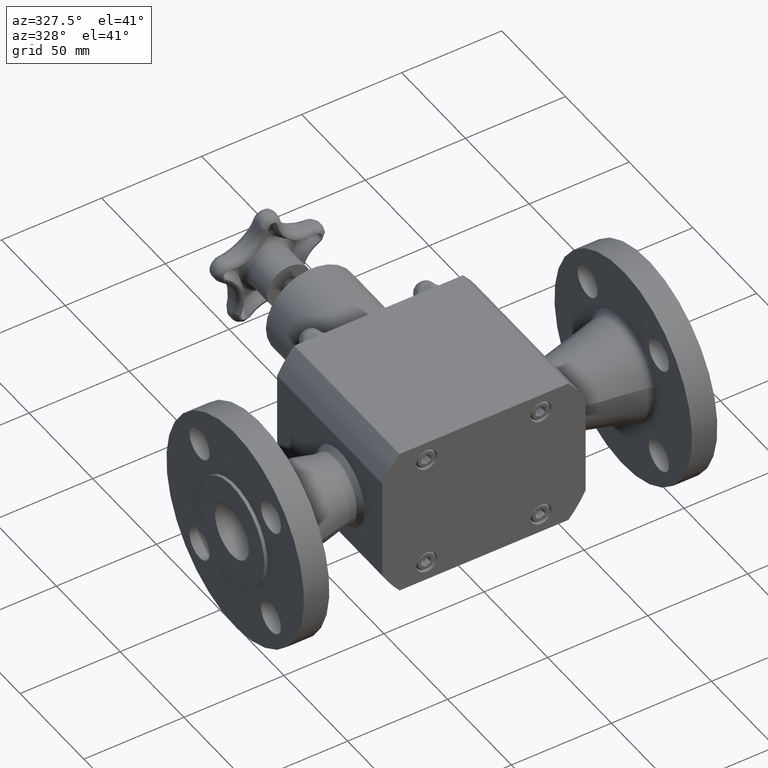
[diagram: clean part render]
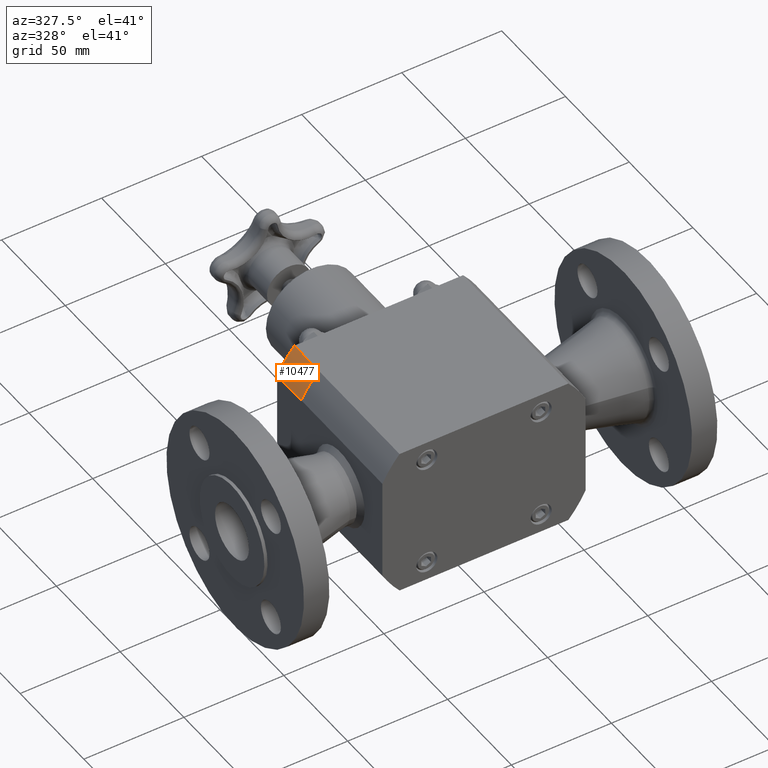
[diagram: same view with one face highlighted and labeled with its STEP entity id]
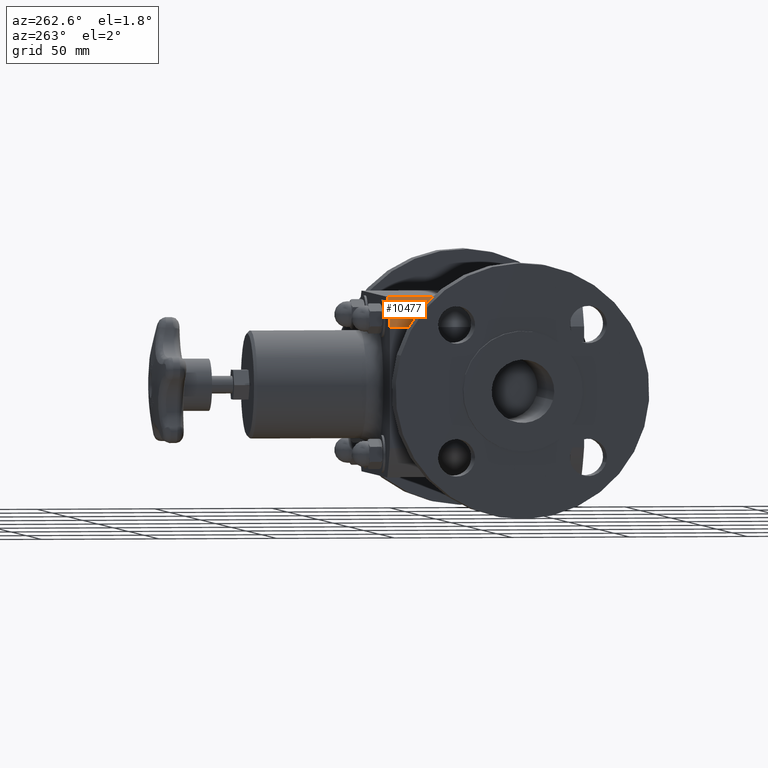
[diagram: same view with one face highlighted and labeled with its STEP entity id]
A machine part, auxiliary view. The second image highlights one B-rep face of the part: STEP entity #10477.
A second angle (auxiliary view) of the same face is appended — the face is thin or edge-on in the first view.
In plain terms, the highlighted cylindrical surface (partial cylindrical patch) has radius 56.8325 mm, axis along (0, -1, -0).
Its self-contained STEP definition (entity closure, byte-faithful):
#10436=CARTESIAN_POINT('',(-3.785906E-015,2.875000000000041,-7.459457E-016));
#10437=DIRECTION('',(1.004159E-015,-1.0,-4.857747E-033));
#10438=DIRECTION('',(1.0,0.0,0.0));
#10439=AXIS2_PLACEMENT_3D('',#10436,#10437,#10438);
#10440=CYLINDRICAL_SURFACE('',#10439,2.237500000000000);
#10441=CARTESIAN_POINT('',(-2.000000000000003,2.500000000000040,1.003198011361665));
#10442=VERTEX_POINT('',#10441);
#10443=CARTESIAN_POINT('',(-2.000000000000004,3.250000000000040,1.003198011361665));
#10444=VERTEX_POINT('',#10443);
#10445=CARTESIAN_POINT('',(-2.000000000000003,2.500000000000040,1.003198011361665));
#10446=DIRECTION('',(0.0,1.0,0.0));
#10447=VECTOR('',#10446,0.750000000000000);
#10448=LINE('',#10445,#10447);
#10449=EDGE_CURVE('',#10442,#10444,#10448,.T.);
#10450=ORIENTED_EDGE('',*,*,#10449,.F.);
#10451=CARTESIAN_POINT('',(-1.660242828624780,2.500000000000040,1.499999999999999));
#10452=VERTEX_POINT('',#10451);
#10453=CARTESIAN_POINT('',(-3.409346E-015,2.500000000000000,-7.459457E-016));
#10454=DIRECTION('',(0.0,-1.0,0.0));
#10455=DIRECTION('',(1.0,0.0,0.0));
#10456=AXIS2_PLACEMENT_3D('',#10453,#10454,#10455);
#10457=CIRCLE('',#10456,2.237500000000000);
#10458=EDGE_CURVE('',#10452,#10442,#10457,.T.);
#10459=ORIENTED_EDGE('',*,*,#10458,.F.);
#10460=CARTESIAN_POINT('',(-1.660242828624781,3.250000000000040,1.499999999999999));
#10461=VERTEX_POINT('',#10460);
#10462=CARTESIAN_POINT('',(-1.660242828624781,3.250000000000040,1.499999999999999));
#10463=DIRECTION('',(0.0,-1.0,0.0));
#10464=VECTOR('',#10463,0.750000000000000);
#10465=LINE('',#10462,#10464);
#10466=EDGE_CURVE('',#10461,#10452,#10465,.T.);
#10467=ORIENTED_EDGE('',*,*,#10466,.F.);
#10468=CARTESIAN_POINT('',(-4.162465E-015,3.250000000000042,-7.459457E-016));
#10469=DIRECTION('',(0.0,-1.0,0.0));
#10470=DIRECTION('',(1.0,0.0,0.0));
#10471=AXIS2_PLACEMENT_3D('',#10468,#10469,#10470);
#10472=CIRCLE('',#10471,2.237500000000000);
#10473=EDGE_CURVE('',#10461,#10444,#10472,.T.);
#10474=ORIENTED_EDGE('',*,*,#10473,.T.);
#10475=EDGE_LOOP('',(#10450,#10459,#10467,#10474));
#10476=FACE_OUTER_BOUND('',#10475,.T.);
#10477=ADVANCED_FACE('',(#10476),#10440,.T.);